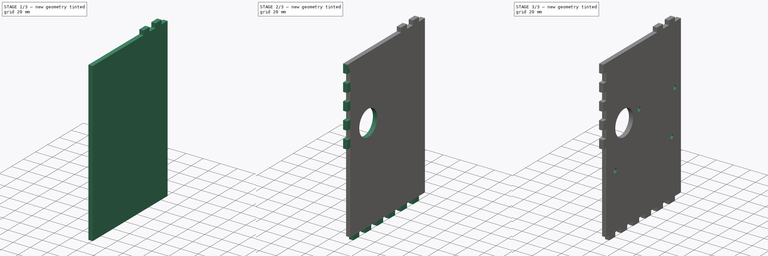
[diagram: build sequence overview — one tinted view per stage of 3, left to right]
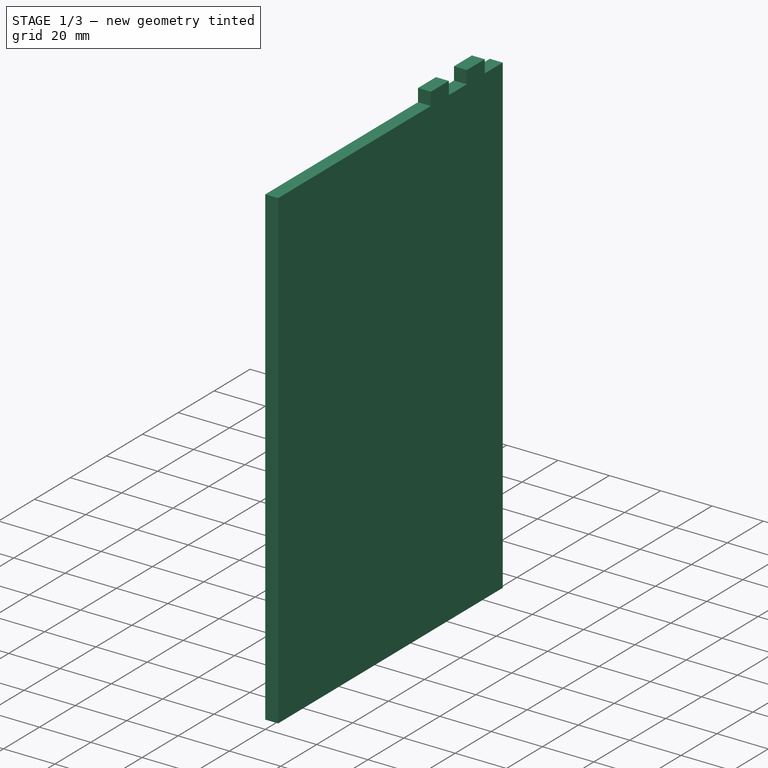
[diagram: stage 1 of 3 — iso view after this stage's code; geometry added in this stage tinted green]
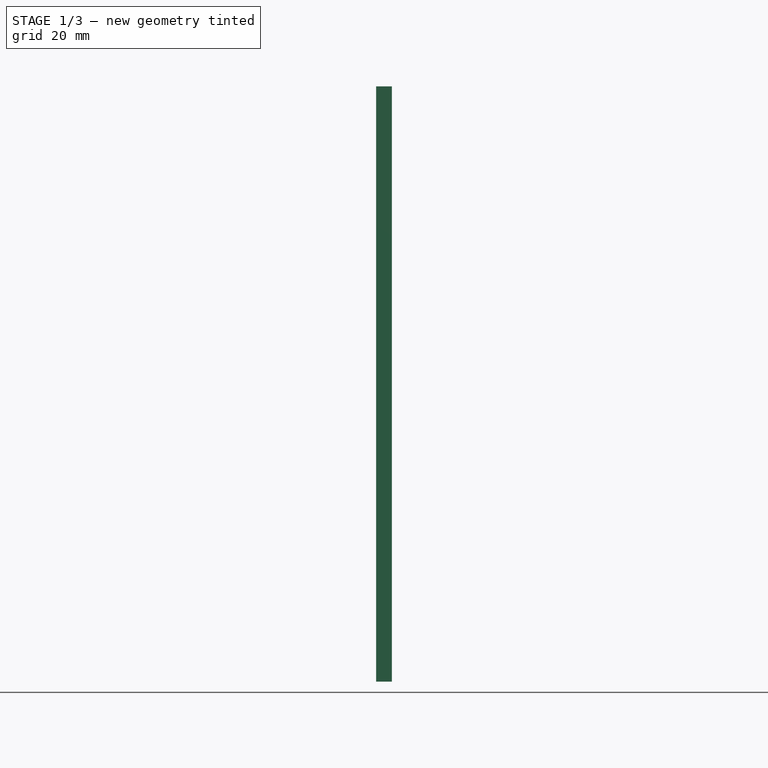
[diagram: stage 1 of 3 — front view after this stage's code; geometry added in this stage tinted green]
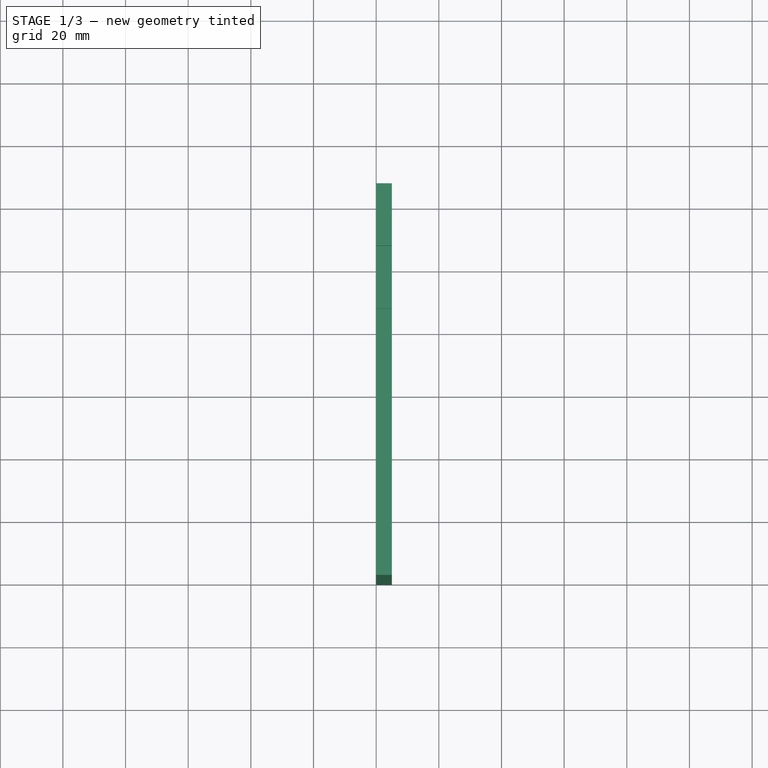
[diagram: stage 1 of 3 — top view after this stage's code; geometry added in this stage tinted green]
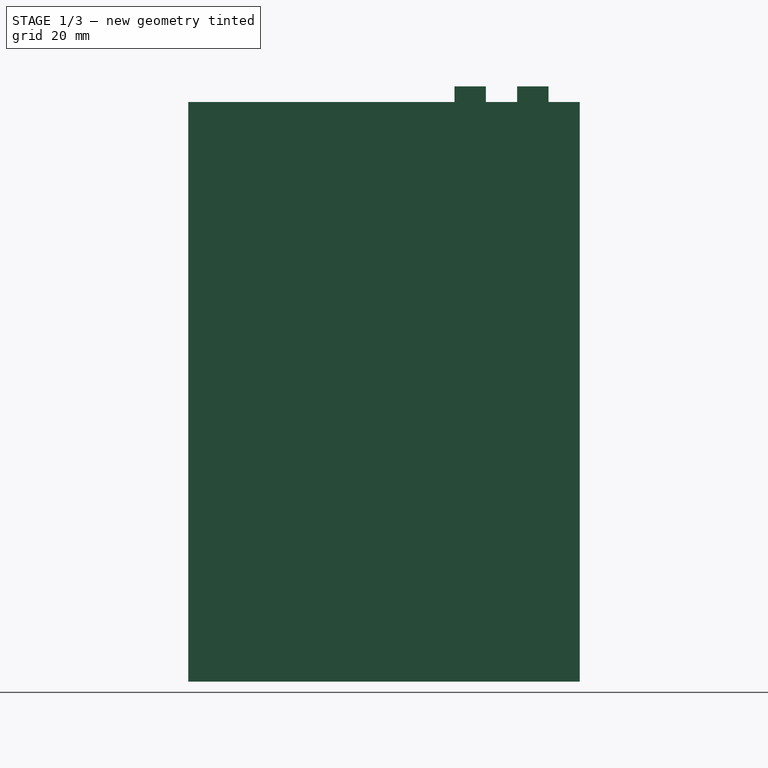
[diagram: stage 1 of 3 — right view after this stage's code; geometry added in this stage tinted green]
FCSTD DOCUMENT  (FreeCAD 0.19R24267 +148 (Git))
Label: InnerPlate
License: All rights reserved
LicenseURL: http://en.wikipedia.org/wiki/All_rights_reserved
objects: Sketcher::SketchObject×7, PartDesign::Pad×4, PartDesign::Pocket×3, PartDesign::Body×1
note: 22 computed .brp shape members not serialized (recipe doc carries the construction recipe); baked Part::Feature solids carry a one-line shape summary decoded from their .brp

FEATURE [Sketcher::SketchObject] Sketch
  FullyConstrained = true
  MapMode = 5
  Placement = pos=(0,0,0) rot=(0.57735,0.57735,0.57735;2.0944rad)
  Support = -> [YZ_Plane]
  sketch-geometry (4):
    g0: LineSegment StartX=0 StartY=0 StartZ=0 EndX=125 EndY=0 EndZ=0
    g1: LineSegment StartX=125 StartY=0 StartZ=0 EndX=125 EndY=185 EndZ=0
    g2: LineSegment StartX=125 StartY=185 StartZ=0 EndX=0 EndY=185 EndZ=0
    g3: LineSegment StartX=0 StartY=185 StartZ=0 EndX=0 EndY=0 EndZ=0
  constraints (11):
    c: Coincident(g0,g1)
    c: Coincident(g1,g2)
    c: Coincident(g2,g3)
    c: Coincident(g3,g0)
    c: Horizontal(g0)
    c: Horizontal(g2)
    c: Vertical(g1)
    c: Vertical(g3)
    c: Coincident(g0,g-1)
    c: Distance(g0) = 125
    c: Distance(g1) = 185
FEATURE [PartDesign::Pad] Pad
  Direction = (1,1,1)
  Length = 5
  Length2 = 100
  Placement = pos=(0,0,0) rot=(0.57735,0.57735,0.57735;2.0944rad)
  Profile = -> Sketch
  Refine = true
  Type = 0
FEATURE [Sketcher::SketchObject] Sketch001
  ExternalGeometry = -> [Pad]
  FullyConstrained = true
  MapMode = 5
  Placement = pos=(5,-1.1e-15,1.1e-15) rot=(0.57735,0.57735,0.57735;2.0944rad)
  Support = -> [Pad]
  sketch-geometry (9):
    g0: LineSegment StartX=105 StartY=185 StartZ=0 EndX=115 EndY=185 EndZ=0
    g1: LineSegment StartX=115 StartY=185 StartZ=0 EndX=115 EndY=190 EndZ=0
    g2: LineSegment StartX=115 StartY=190 StartZ=0 EndX=105 EndY=190 EndZ=0
    g3: LineSegment StartX=105 StartY=190 StartZ=0 EndX=105 EndY=185 EndZ=0
    g4: LineSegment StartX=85 StartY=185 StartZ=0 EndX=95 EndY=185 EndZ=0
    g5: LineSegment StartX=95 StartY=185 StartZ=0 EndX=95 EndY=190 EndZ=0
    g6: LineSegment StartX=95 StartY=190 StartZ=0 EndX=85 EndY=190 EndZ=0
    g7: LineSegment StartX=85 StartY=190 StartZ=0 EndX=85 EndY=185 EndZ=0
    g8: LineSegment StartX=105 StartY=185 StartZ=0 EndX=85 EndY=185 EndZ=0
  constraints (26):
    c: Coincident(g0,g1)
    c: Coincident(g1,g2)
    c: Coincident(g2,g3)
    c: Coincident(g3,g0)
    c: Horizontal(g0)
    c: Horizontal(g2)
    c: Vertical(g1)
    c: Vertical(g3)
    c: Distance(g3) = 5
    c: Distance(g2) = 10
    c: Horizontal(g0,g-3)
    c: DistanceX(g0,g-3) = 10
    c: Coincident(g4,g5)
    c: Coincident(g5,g6)
    c: Coincident(g6,g7)
    c: Coincident(g7,g4)
    c: Horizontal(g4)
    c: Horizontal(g6)
    c: Vertical(g5)
    c: Vertical(g7)
    c: Equal(g3,g7) = 5
    c: Equal(g2,g6) = 10
    c: Coincident(g0,g8)
    c: Coincident(g4,g8)
    c: Distance(g8) = 20
    c: Horizontal(g8)
FEATURE [PartDesign::Pad] Pad001  label="UpperCrenel"
  BaseFeature = -> Pad
  Direction = (1,1,1)
  Length = 10
  Length2 = 100
  Placement = pos=(0,0,0) rot=(0.57735,0.57735,0.57735;2.0944rad)
  Profile = -> Sketch001
  Refine = true
  Type = 3
  UpToFace = -> Pad [Face5]
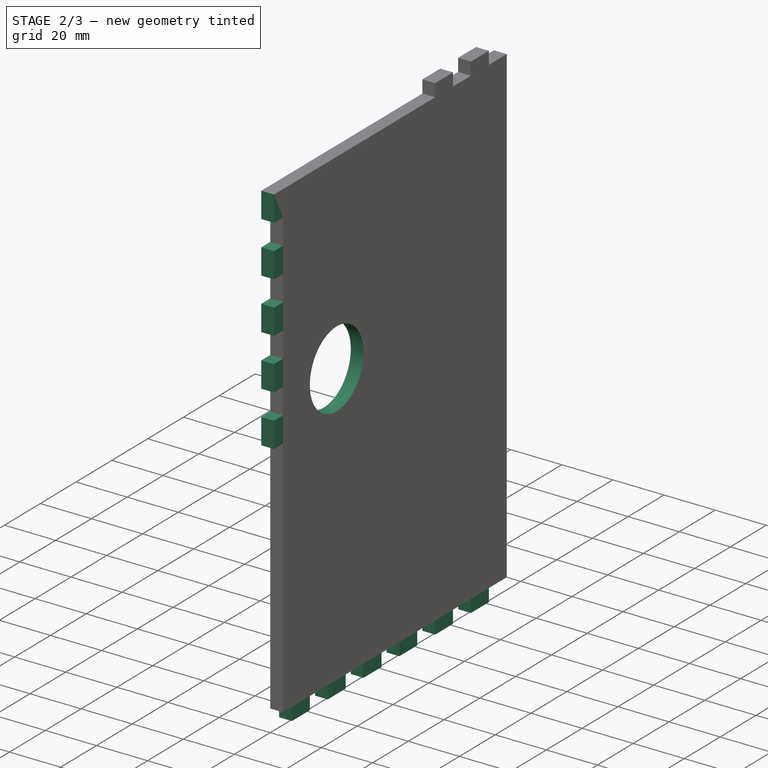
[diagram: stage 2 of 3 — iso view after this stage's code; geometry added in this stage tinted green]
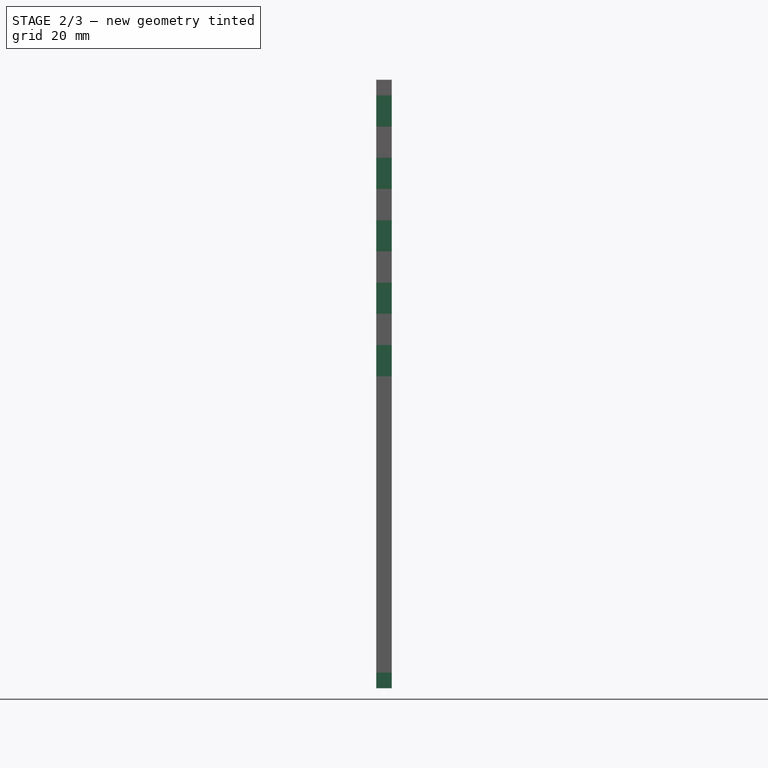
[diagram: stage 2 of 3 — front view after this stage's code; geometry added in this stage tinted green]
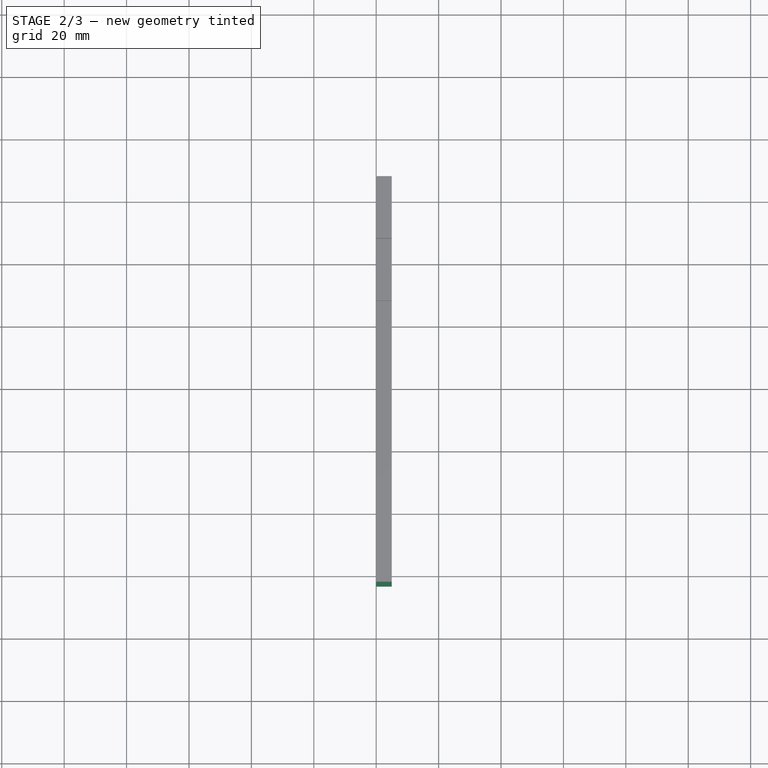
[diagram: stage 2 of 3 — top view after this stage's code; geometry added in this stage tinted green]
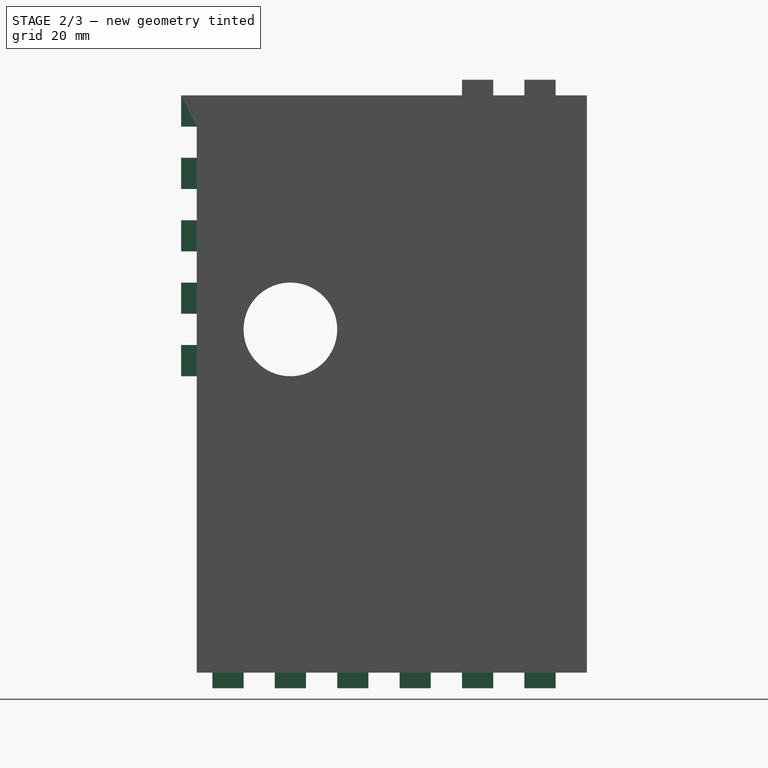
[diagram: stage 2 of 3 — right view after this stage's code; geometry added in this stage tinted green]
FEATURE [Sketcher::SketchObject] Sketch002
  FullyConstrained = true
  MapMode = 5
  Placement = pos=(5,-1.2e-15,3.9e-15) rot=(0.57735,0.57735,0.57735;2.0944rad)
  Support = -> [Pad001]
  sketch-geometry (29):
    g0: LineSegment StartX=5 StartY=0 StartZ=0 EndX=15 EndY=0 EndZ=0
    g1: LineSegment StartX=15 StartY=0 StartZ=0 EndX=15 EndY=-5 EndZ=0
    g2: LineSegment StartX=15 StartY=-5 StartZ=0 EndX=5 EndY=-5 EndZ=0
    g3: LineSegment StartX=5 StartY=-5 StartZ=0 EndX=5 EndY=0 EndZ=0
    g4: LineSegment StartX=25 StartY=0 StartZ=0 EndX=35 EndY=0 EndZ=0
    g5: LineSegment StartX=35 StartY=0 StartZ=0 EndX=35 EndY=-5 EndZ=0
    g6: LineSegment StartX=35 StartY=-5 StartZ=0 EndX=25 EndY=-5 EndZ=0
    g7: LineSegment StartX=25 StartY=-5 StartZ=0 EndX=25 EndY=0 EndZ=0
    g8: LineSegment StartX=5 StartY=0 StartZ=0 EndX=25 EndY=0 EndZ=0
    g9: LineSegment StartX=45 StartY=0 StartZ=0 EndX=55 EndY=0 EndZ=0
    g10: LineSegment StartX=55 StartY=0 StartZ=0 EndX=55 EndY=-5 EndZ=0
    g11: LineSegment StartX=55 StartY=-5 StartZ=0 EndX=45 EndY=-5 EndZ=0
    g12: LineSegment StartX=45 StartY=-5 StartZ=0 EndX=45 EndY=0 EndZ=0
    g13: LineSegment StartX=25 StartY=0 StartZ=0 EndX=45 EndY=0 EndZ=0
    g14: LineSegment StartX=65 StartY=0 StartZ=0 EndX=75 EndY=0 EndZ=0
    g15: LineSegment StartX=75 StartY=0 StartZ=0 EndX=75 EndY=-5 EndZ=0
    g16: LineSegment StartX=75 StartY=-5 StartZ=0 EndX=65 EndY=-5 EndZ=0
    g17: LineSegment StartX=65 StartY=-5 StartZ=0 EndX=65 EndY=0 EndZ=0
    g18: LineSegment StartX=45 StartY=0 StartZ=0 EndX=65 EndY=0 EndZ=0
    g19: LineSegment StartX=85 StartY=0 StartZ=0 EndX=95 EndY=0 EndZ=0
    g20: LineSegment StartX=95 StartY=0 StartZ=0 EndX=95 EndY=-5 EndZ=0
    g21: LineSegment StartX=95 StartY=-5 StartZ=0 EndX=85 EndY=-5 EndZ=0
    g22: LineSegment StartX=85 StartY=-5 StartZ=0 EndX=85 EndY=0 EndZ=0
    g23: LineSegment StartX=65 StartY=0 StartZ=0 EndX=85 EndY=0 EndZ=0
    g24: LineSegment StartX=105 StartY=0 StartZ=0 EndX=115 EndY=0 EndZ=0
    g25: LineSegment StartX=115 StartY=0 StartZ=0 EndX=115 EndY=-5 EndZ=0
    g26: LineSegment StartX=115 StartY=-5 StartZ=0 EndX=105 EndY=-5 EndZ=0
    g27: LineSegment StartX=105 StartY=-5 StartZ=0 EndX=105 EndY=0 EndZ=0
    g28: LineSegment StartX=85 StartY=0 StartZ=0 EndX=105 EndY=0 EndZ=0
  constraints (82):
    c: Coincident(g0,g1)
    c: Coincident(g1,g2)
    c: Coincident(g2,g3)
    c: Coincident(g3,g0)
    c: Horizontal(g0)
    c: Horizontal(g2)
    c: Vertical(g1)
    c: Vertical(g3)
    c: PointOnObject(g0,g-1)
    c: Distance(g2) = 10
    c: Distance(g1) = 5
    c: DistanceX(g-1,g0) = 5
    c: Coincident(g4,g5)
    c: Coincident(g5,g6)
    c: Coincident(g6,g7)
    c: Coincident(g7,g4)
    c: Horizontal(g4)
    c: Horizontal(g6)
    c: Vertical(g5)
    c: Vertical(g7)
    c: Equal(g2,g6) = 10
    c: Equal(g1,g5) = 5
    c: Coincident(g0,g8)
    c: Coincident(g4,g8)
    c: Distance(g8) = 20
    c: Coincident(g9,g10)
    c: Coincident(g10,g11)
    c: Coincident(g11,g12)
    c: Coincident(g12,g9)
    c: Horizontal(g9)
    c: Horizontal(g11)
    c: Vertical(g10)
    c: Vertical(g12)
    c: Equal(g2,g11) = 10
    c: Equal(g1,g10) = 5
    c: Coincident(g4,g13)
    c: Coincident(g9,g13)
    c: Equal(g8,g13)
    c: Parallel(g13,g8)
    c: Coincident(g14,g15)
    c: Coincident(g15,g16)
    c: Coincident(g16,g17)
    c: Coincident(g17,g14)
    c: Horizontal(g14)
    c: Horizontal(g16)
    c: Vertical(g15)
    c: Vertical(g17)
    c: Equal(g2,g16) = 10
    c: Equal(g1,g15) = 5
    c: Coincident(g9,g18)
    c: Coincident(g14,g18)
    c: Equal(g8,g18)
    c: Parallel(g18,g8)
    c: Coincident(g19,g20)
    c: Coincident(g20,g21)
    c: Coincident(g21,g22)
    c: Coincident(g22,g19)
    c: Horizontal(g19)
    c: Horizontal(g21)
    c: Vertical(g20)
    c: Vertical(g22)
    c: Equal(g2,g21) = 10
    c: Equal(g1,g20) = 5
    c: Coincident(g14,g23)
    c: Coincident(g19,g23)
    c: Equal(g8,g23)
    c: Parallel(g23,g8)
    c: Coincident(g24,g25)
    c: Coincident(g25,g26)
    c: Coincident(g26,g27)
    c: Coincident(g27,g24)
    c: Horizontal(g24)
    c: Horizontal(g26)
    c: Vertical(g25)
    c: Vertical(g27)
    c: Equal(g2,g26) = 10
    c: Equal(g1,g25) = 5
    c: Coincident(g19,g28)
    c: Coincident(g24,g28)
    c: Equal(g8,g28)
    c: Parallel(g28,g8)
    c: Horizontal(g8)
FEATURE [PartDesign::Pad] Pad002  label="BottomCrenel"
  BaseFeature = -> Pad001
  Direction = (1,1,1)
  Length = 10
  Length2 = 100
  Placement = pos=(0,0,0) rot=(0.57735,0.57735,0.57735;2.0944rad)
  Profile = -> Sketch002
  Refine = true
  Type = 3
  UpToFace = -> Pad001 [Face13]
FEATURE [Sketcher::SketchObject] Sketch003
  ExternalGeometry = -> [Pad002]
  FullyConstrained = true
  MapMode = 5
  Placement = pos=(5,-1e-15,5.4e-15) rot=(0.57735,0.57735,0.57735;2.0944rad)
  Support = -> [Pad002]
  sketch-geometry (24):
    g0: LineSegment StartX=9.93e-14 StartY=185 StartZ=0 EndX=-5 EndY=185 EndZ=0
    g1: LineSegment StartX=-5 StartY=185 StartZ=0 EndX=-5 EndY=175 EndZ=0
    g2: LineSegment StartX=-5 StartY=175 StartZ=0 EndX=9.95e-14 EndY=175 EndZ=0
    g3: LineSegment StartX=9.93e-14 StartY=175 StartZ=0 EndX=9.93e-14 EndY=185 EndZ=0
    g4: LineSegment StartX=9.93e-14 StartY=165 StartZ=0 EndX=-5 EndY=165 EndZ=0
    g5: LineSegment StartX=-5 StartY=165 StartZ=0 EndX=-5 EndY=155 EndZ=0
    g6: LineSegment StartX=-5 StartY=155 StartZ=0 EndX=9.95e-14 EndY=155 EndZ=0
    g7: LineSegment StartX=9.93e-14 StartY=155 StartZ=0 EndX=9.93e-14 EndY=165 EndZ=0
    g8: LineSegment StartX=9.93e-14 StartY=185 StartZ=0 EndX=9.93e-14 EndY=165 EndZ=0
    g9: LineSegment StartX=9.95e-14 StartY=145 StartZ=0 EndX=-5 EndY=145 EndZ=0
    g10: LineSegment StartX=-5 StartY=145 StartZ=0 EndX=-5 EndY=135 EndZ=0
    g11: LineSegment StartX=-5 StartY=135 StartZ=0 EndX=9.95e-14 EndY=135 EndZ=0
    g12: LineSegment StartX=9.95e-14 StartY=135 StartZ=0 EndX=9.95e-14 EndY=145 EndZ=0
    g13: LineSegment StartX=9.93e-14 StartY=165 StartZ=0 EndX=9.95e-14 EndY=145 EndZ=0
    g14: LineSegment StartX=9.93e-14 StartY=125 StartZ=0 EndX=-5 EndY=125 EndZ=0
    g15: LineSegment StartX=-5 StartY=125 StartZ=0 EndX=-5 EndY=115 EndZ=0
    g16: LineSegment StartX=-5 StartY=115 StartZ=0 EndX=9.95e-14 EndY=115 EndZ=0
    g17: LineSegment StartX=9.93e-14 StartY=115 StartZ=0 EndX=9.93e-14 EndY=125 EndZ=0
    g18: LineSegment StartX=9.95e-14 StartY=145 StartZ=0 EndX=9.93e-14 EndY=125 EndZ=0
    g19: LineSegment StartX=9.95e-14 StartY=105 StartZ=0 EndX=-5 EndY=105 EndZ=0
    g20: LineSegment StartX=-5 StartY=105 StartZ=0 EndX=-5 EndY=95 EndZ=0
    g21: LineSegment StartX=-5 StartY=95 StartZ=0 EndX=9.95e-14 EndY=95 EndZ=0
    g22: LineSegment StartX=9.95e-14 StartY=95 StartZ=0 EndX=9.95e-14 EndY=105 EndZ=0
    g23: LineSegment StartX=9.93e-14 StartY=125 StartZ=0 EndX=9.95e-14 EndY=105 EndZ=0
  constraints (67):
    c: Coincident(g0,g1)
    c: Coincident(g1,g2)
    c: Coincident(g2,g3)
    c: Coincident(g3,g0)
    c: Horizontal(g0)
    c: Horizontal(g2)
    c: Vertical(g1)
    c: Vertical(g3)
    c: Coincident(g0,g-3)
    c: Distance(g0) = 5
    c: Distance(g1) = 10
    c: Coincident(g4,g5)
    c: Coincident(g5,g6)
    c: Coincident(g6,g7)
    c: Coincident(g7,g4)
    c: Horizontal(g4)
    c: Horizontal(g6)
    c: Vertical(g5)
    c: Vertical(g7)
    c: Equal(g0,g4) = 5
    c: Equal(g1,g5) = 10
    c: Coincident(g0,g8)
    c: Coincident(g4,g8)
    c: Distance(g8) = 20
    c: Coincident(g9,g10)
    c: Coincident(g10,g11)
    c: Coincident(g11,g12)
    c: Coincident(g12,g9)
    c: Horizontal(g9)
    c: Horizontal(g11)
    c: Vertical(g10)
    c: Vertical(g12)
    c: Equal(g0,g9) = 5
    c: Equal(g1,g10) = 10
    c: Coincident(g4,g13)
    c: Coincident(g9,g13)
    c: Equal(g8,g13)
    c: Parallel(g13,g8)
    c: Coincident(g14,g15)
    c: Coincident(g15,g16)
    c: Coincident(g16,g17)
    c: Coincident(g17,g14)
    c: Horizontal(g14)
    c: Horizontal(g16)
    c: Vertical(g15)
    c: Vertical(g17)
    c: Equal(g0,g14) = 5
    c: Equal(g1,g15) = 10
    c: Coincident(g9,g18)
    c: Coincident(g14,g18)
    c: Equal(g8,g18)
    c: Parallel(g18,g8)
    c: Coincident(g19,g20)
    c: Coincident(g20,g21)
    c: Coincident(g21,g22)
    c: Coincident(g22,g19)
    c: Horizontal(g19)
    c: Horizontal(g21)
    c: Vertical(g20)
    c: Vertical(g22)
    c: Equal(g0,g19) = 5
    c: Equal(g1,g20) = 10
    c: Coincident(g14,g23)
    c: Coincident(g19,g23)
    c: Equal(g8,g23)
    c: Parallel(g23,g8)
    c: Vertical(g8)
FEATURE [PartDesign::Pad] Pad003  label="FrontCrenel"
  BaseFeature = -> Pad002
  Direction = (1,1,1)
  Length = 10
  Length2 = 100
  Placement = pos=(0,0,0) rot=(0.57735,0.57735,0.57735;2.0944rad)
  Profile = -> Sketch003
  Refine = true
  Type = 3
  UpToFace = -> Pad002 [Face37]
FEATURE [Sketcher::SketchObject] Sketch004
  FullyConstrained = true
  MapMode = 5
  Placement = pos=(5,-2.3e-15,9e-16) rot=(0.57735,0.57735,0.57735;2.0944rad)
  Support = -> [Pad003]
  sketch-geometry (1):
    g0: Circle CenterX=30 CenterY=110 CenterZ=0 NormalX=0 NormalY=0 NormalZ=1 AngleXU=0 Radius=15
  constraints (3):
    c: Diameter(g0) = 30
    c: DistanceY(g-1,g0) = 110
    c: DistanceX(g-1,g0) = 30
FEATURE [PartDesign::Pocket] Pocket  label="PassageForCable"
  BaseFeature = -> Pad003
  Length = 5
  Length2 = 100
  Placement = pos=(0,0,0) rot=(0.57735,0.57735,0.57735;2.0944rad)
  Profile = -> Sketch004
  Refine = true
  Type = 1
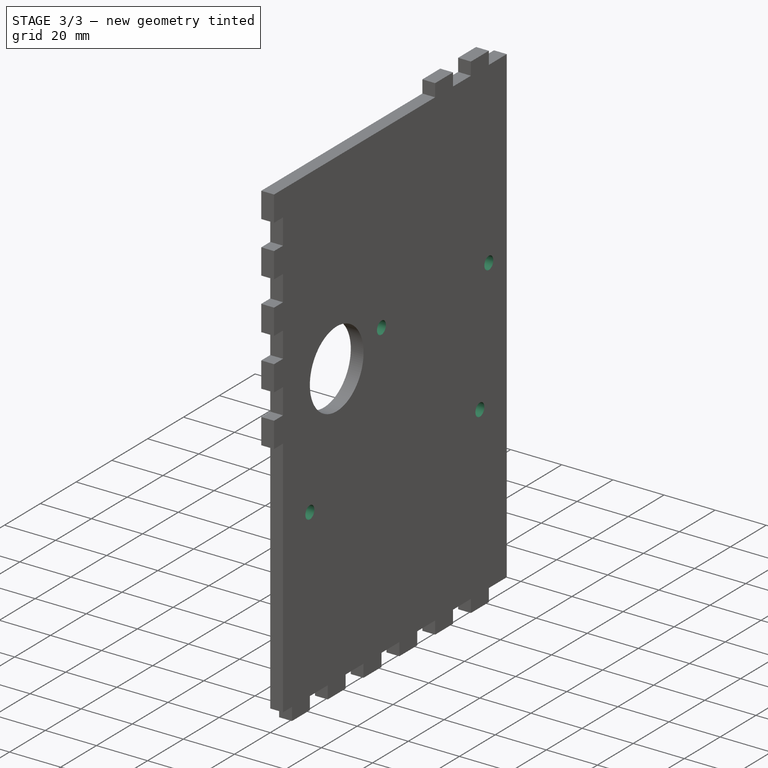
[diagram: stage 3 of 3 — iso view after this stage's code; geometry added in this stage tinted green]
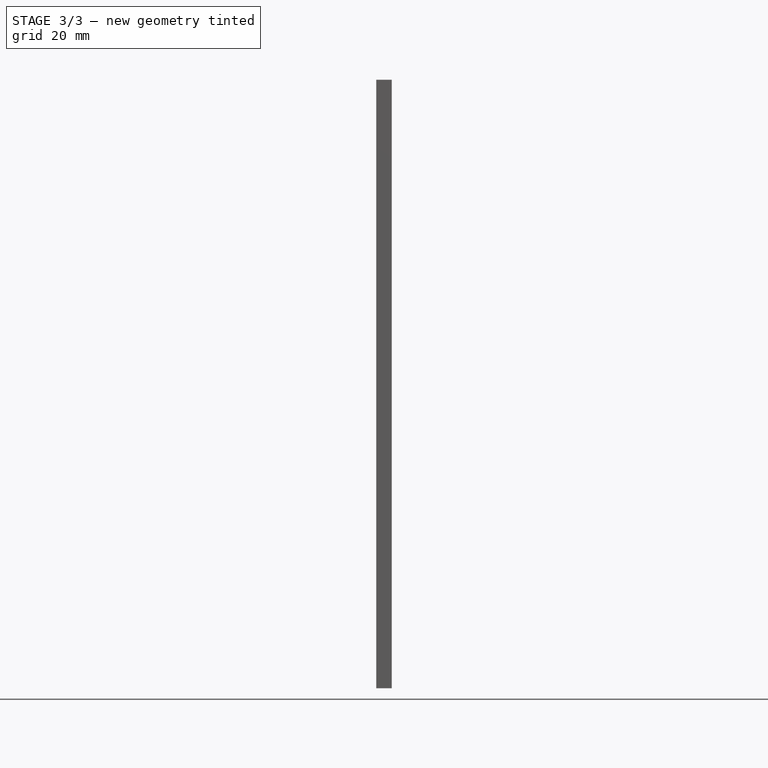
[diagram: stage 3 of 3 — front view after this stage's code; geometry added in this stage tinted green]
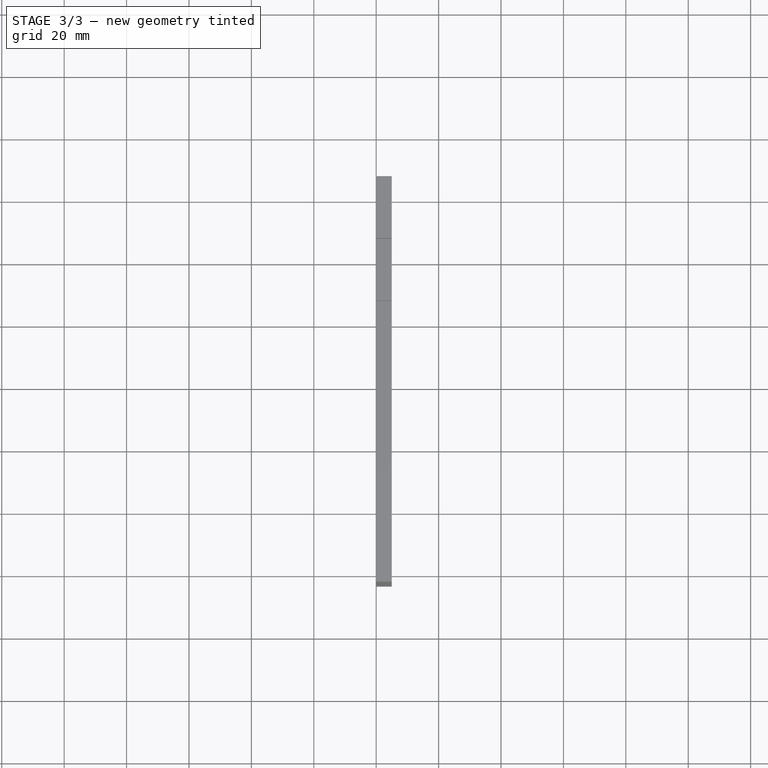
[diagram: stage 3 of 3 — top view after this stage's code; geometry added in this stage tinted green]
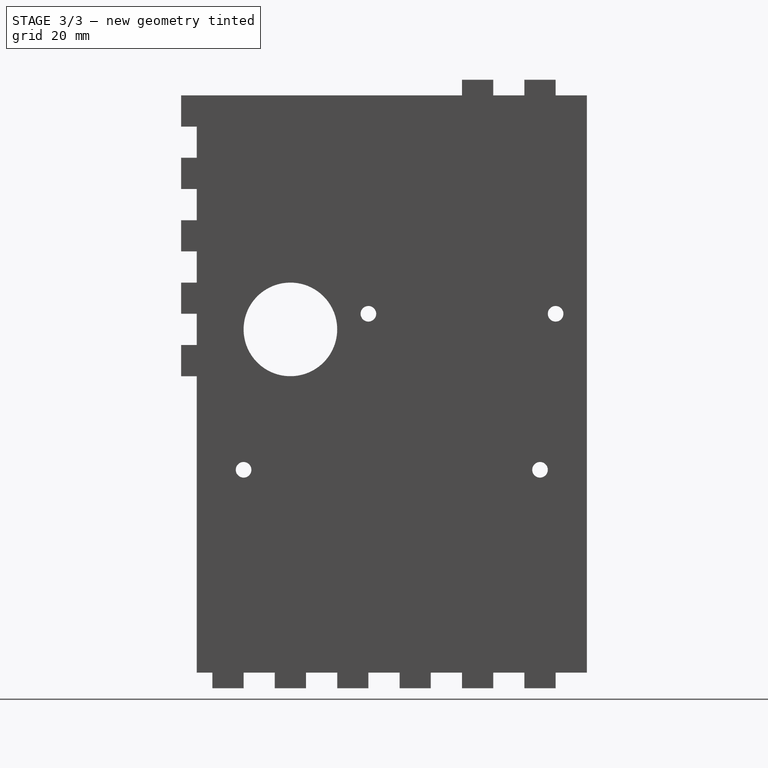
[diagram: stage 3 of 3 — right view after this stage's code; geometry added in this stage tinted green]
FEATURE [Sketcher::SketchObject] Sketch005
  FullyConstrained = true
  MapMode = 5
  Placement = pos=(0,0,0) rot=(0.57735,0.57735,0.57735;2.0944rad)
  Support = -> [YZ_Plane]
  sketch-geometry (2):
    g0: Circle CenterX=15 CenterY=65 CenterZ=0 NormalX=0 NormalY=0 NormalZ=1 AngleXU=0 Radius=2.5
    g1: Circle CenterX=110 CenterY=65 CenterZ=0 NormalX=0 NormalY=0 NormalZ=1 AngleXU=0 Radius=2.5
  constraints (6):
    c: Equal(g0,g1)
    c: DistanceX(g-1,g0) = 15
    c: DistanceY(g-1,g0) = 65
    c: Diameter(g0) = 5
    c: Horizontal(g0,g1)
    c: Distance(g0,g1) = 95
FEATURE [PartDesign::Pocket] Pocket001  label="HolesForTry_Square"
  BaseFeature = -> Pocket
  Length = 5
  Length2 = 100
  Midplane = true
  Placement = pos=(0,0,0) rot=(0.57735,0.57735,0.57735;2.0944rad)
  Profile = -> Sketch005
  Refine = true
  Type = 1
FEATURE [Sketcher::SketchObject] Sketch006
  FullyConstrained = true
  MapMode = 5
  Placement = pos=(0,0,0) rot=(0.57735,0.57735,0.57735;2.0944rad)
  Support = -> [YZ_Plane]
  sketch-geometry (2):
    g0: Circle CenterX=55 CenterY=115 CenterZ=0 NormalX=0 NormalY=0 NormalZ=1 AngleXU=0 Radius=2.5
    g1: Circle CenterX=115 CenterY=115 CenterZ=0 NormalX=0 NormalY=0 NormalZ=1 AngleXU=0 Radius=2.5
  constraints (6):
    c: Equal(g1,g0)
    c: DistanceX(g-1,g0) = 55
    c: DistanceY(g-1,g0) = 115
    c: Horizontal(g1,g0)
    c: Diameter(g0) = 5
    c: DistanceX(g0,g1) = 60
FEATURE [PartDesign::Pocket] Pocket002  label="HolesForDriverSupport"
  BaseFeature = -> Pocket001
  Length = 5
  Length2 = 100
  Midplane = true
  Placement = pos=(0,0,0) rot=(0.57735,0.57735,0.57735;2.0944rad)
  Profile = -> Sketch006
  Refine = true
  Type = 1
FEATURE [PartDesign::Body] Body
  Group = -> [Sketch,Pad,Sketch001,Pad001,Sketch002,Pad002,Sketch003,Pad003,Sketch004,Pocket,Sketch005,Pocket001,Sketch006,Pocket002]
  Origin = -> Origin
  Tip = -> Pocket002
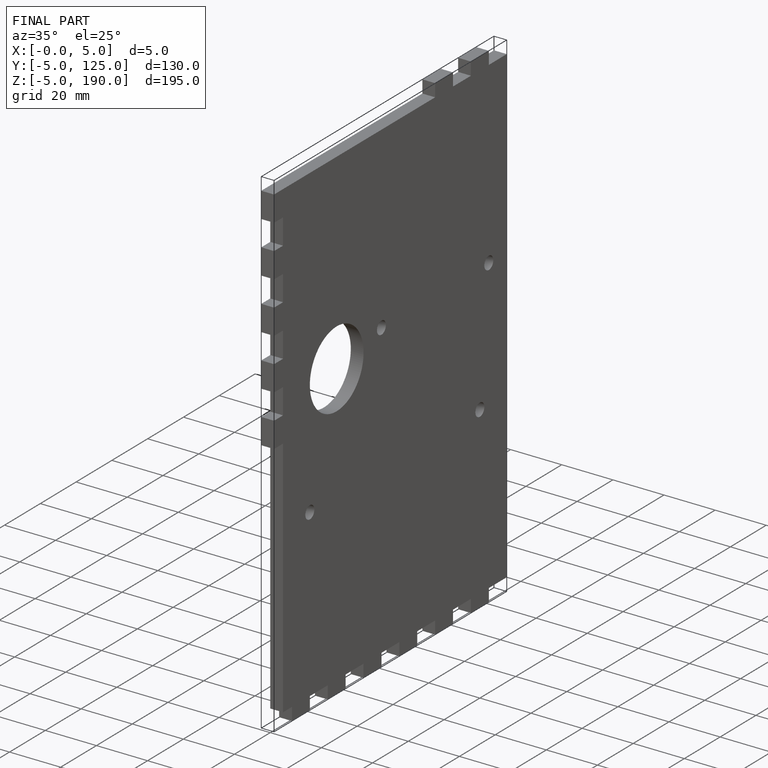
[diagram: finished part — iso view with bounding-box wireframe]
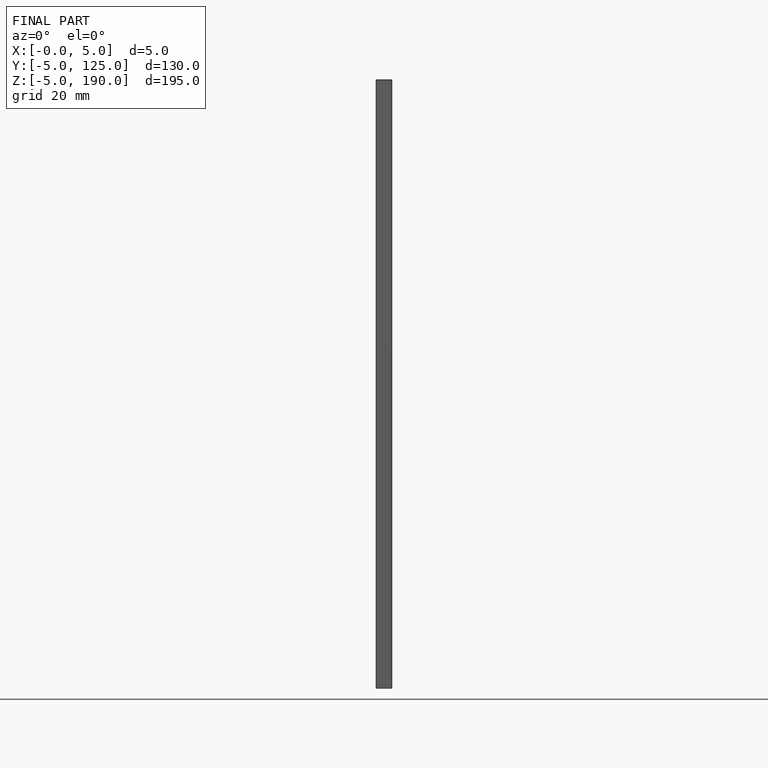
[diagram: finished part — front view with bounding-box wireframe]
